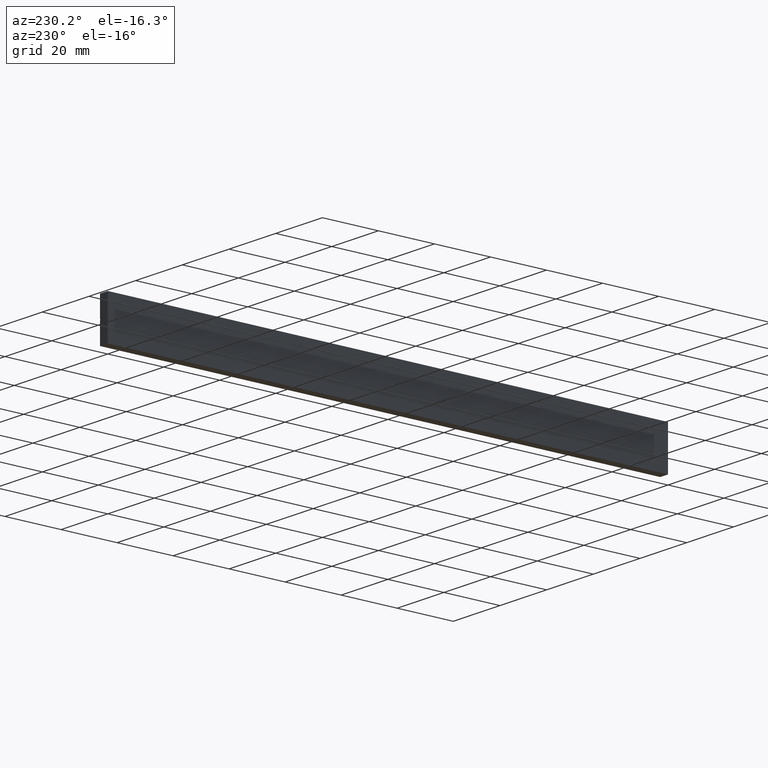
[diagram: clean part render]
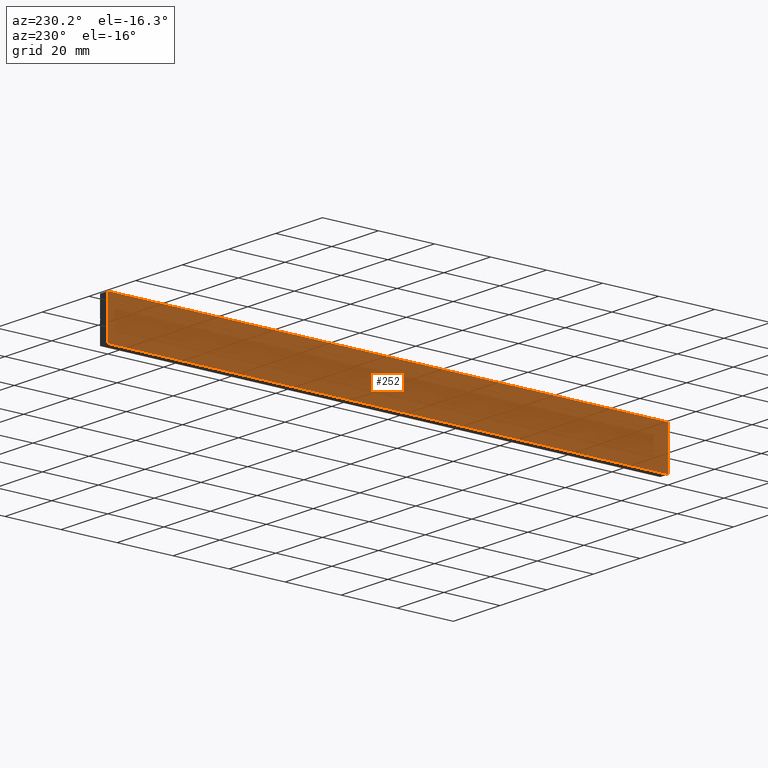
[diagram: same view with one face highlighted and labeled with its STEP entity id]
A machine part, auxiliary view. The second image highlights one B-rep face of the part: STEP entity #252.
In plain terms, the highlighted face is a freeform B-spline surface patch.
Its self-contained STEP definition (entity closure, byte-faithful):
#51=CARTESIAN_POINT('',(0.0,0.0,0.0));
#52=VERTEX_POINT('',#51);
#87=CARTESIAN_POINT('',(4.973799E-014,0.0,15.0));
#88=VERTEX_POINT('',#87);
#94=CARTESIAN_POINT('',(0.0,0.0,0.0));
#95=CARTESIAN_POINT('',(4.973799E-014,0.0,15.0));
#96=QUASI_UNIFORM_CURVE('',1,(#94,#95),.UNSPECIFIED.,.F.,.U.);
#97=EDGE_CURVE('',#52,#88,#96,.T.);
#109=CARTESIAN_POINT('',(0.0,200.0,0.0));
#110=VERTEX_POINT('',#109);
#116=CARTESIAN_POINT('',(4.973799E-014,200.0,15.0));
#117=VERTEX_POINT('',#116);
#118=CARTESIAN_POINT('',(0.0,200.0,0.0));
#119=CARTESIAN_POINT('',(4.973799E-014,200.0,15.0));
#120=QUASI_UNIFORM_CURVE('',1,(#118,#119),.UNSPECIFIED.,.F.,.U.);
#121=EDGE_CURVE('',#110,#117,#120,.T.);
#229=CARTESIAN_POINT('',(4.973799E-014,200.0,15.0));
#230=CARTESIAN_POINT('',(4.973799E-014,0.0,15.0));
#231=QUASI_UNIFORM_CURVE('',1,(#229,#230),.UNSPECIFIED.,.F.,.U.);
#232=EDGE_CURVE('',#117,#88,#231,.T.);
#237=CARTESIAN_POINT('',(0.0,-9.989999612361194,15.749249970927091));
#238=CARTESIAN_POINT('',(0.0,-9.989999612361194,-0.749250373258442));
#239=CARTESIAN_POINT('',(0.0,209.990004976779200,15.749249970927091));
#240=CARTESIAN_POINT('',(0.0,209.990004976779200,-0.749250373258442));
#241=B_SPLINE_SURFACE_WITH_KNOTS('',1,1,((#237,#239),(#238,#240)),.UNSPECIFIED.,.F.,.F.,.U.,(2,2),(2,2),(0.0,16.498500344185530),(0.0,219.980004589140410),.UNSPECIFIED.);
#242=ORIENTED_EDGE('',*,*,#97,.T.);
#243=ORIENTED_EDGE('',*,*,#232,.F.);
#244=ORIENTED_EDGE('',*,*,#121,.F.);
#245=CARTESIAN_POINT('',(0.0,200.0,0.0));
#246=CARTESIAN_POINT('',(0.0,0.0,0.0));
#247=QUASI_UNIFORM_CURVE('',1,(#245,#246),.UNSPECIFIED.,.F.,.U.);
#248=EDGE_CURVE('',#110,#52,#247,.T.);
#249=ORIENTED_EDGE('',*,*,#248,.T.);
#250=EDGE_LOOP('',(#242,#243,#244,#249));
#251=FACE_OUTER_BOUND('',#250,.T.);
#252=ADVANCED_FACE('',(#251),#241,.F.);